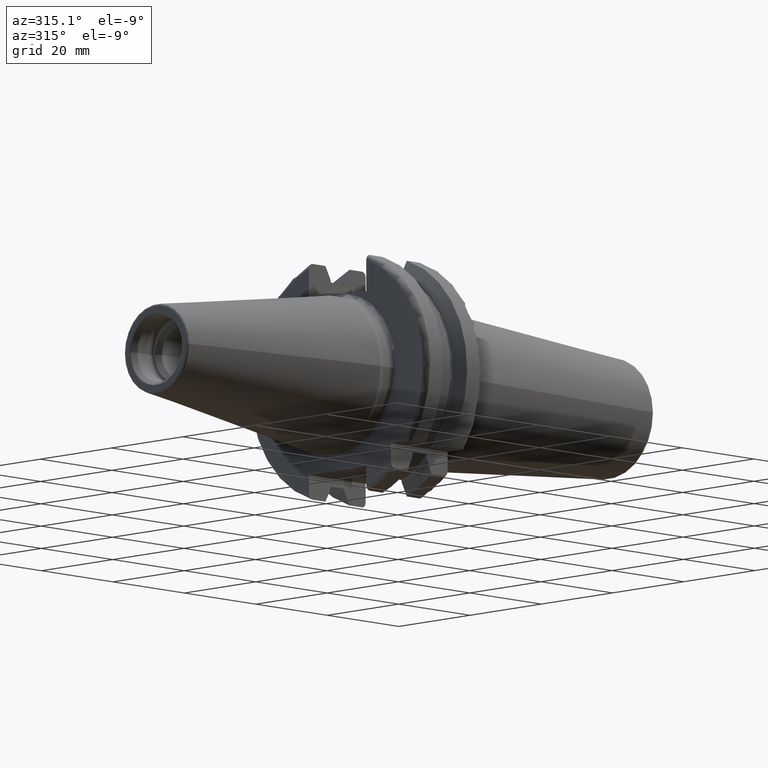
[diagram: clean part render]
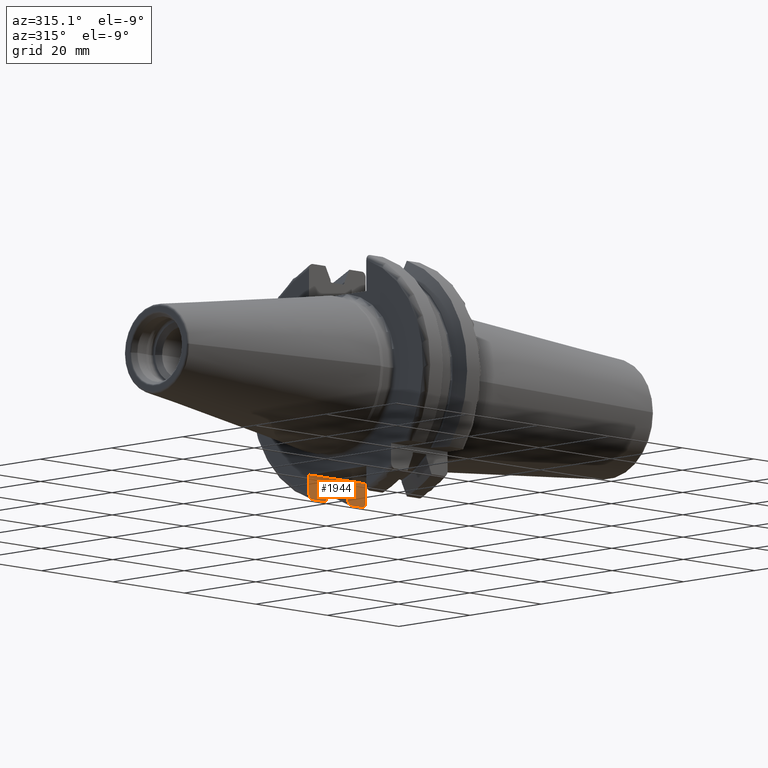
[diagram: same view with one face highlighted and labeled with its STEP entity id]
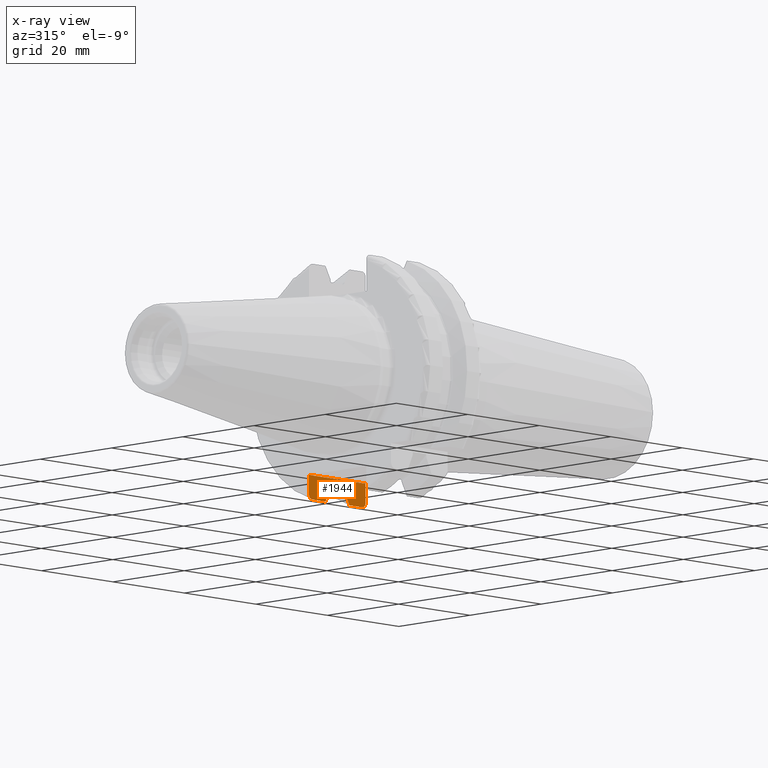
[diagram: x-ray of the same camera — body ghosted, the highlighted face saturated]
A machine part, auxiliary view. The second image highlights one B-rep face of the part: STEP entity #1944.
The next image is the same camera in x-ray: the body ghosted, the highlighted face saturated — about 0% of this face is hidden behind the body in this view.
In plain terms, the highlighted planar face has unit normal (0, 1, 0).
Its self-contained STEP definition (entity closure, byte-faithful):
#144=DIRECTION('',(0.E0,0.E0,1.E0));
#145=VECTOR('',#144,3.799061927434E0);
#146=CARTESIAN_POINT('',(1.905E1,8.05E0,-2.259906192743E1));
#147=LINE('',#146,#145);
#317=DIRECTION('',(0.E0,3.534765641791E-14,1.E0));
#318=VECTOR('',#317,2.010155149636E-1);
#319=CARTESIAN_POINT('',(9.2625E0,8.05E0,-2.097053946232E1));
#320=LINE('',#319,#318);
#379=CARTESIAN_POINT('',(7.803274427933E0,8.05E0,-2.365792890344E1));
#380=CARTESIAN_POINT('',(7.972427442555E0,8.05E0,-2.334845081669E1));
#381=CARTESIAN_POINT('',(8.306073844189E0,8.05E0,-2.273675949894E1));
#382=CARTESIAN_POINT('',(8.792438946834E0,8.05E0,-2.184111363646E1));
#383=CARTESIAN_POINT('',(9.107378251064E0,8.05E0,-2.125833411433E1));
#384=CARTESIAN_POINT('',(9.2625E0,8.05E0,-2.097053946232E1));
#451=CARTESIAN_POINT('',(9.5125E0,8.05E0,-2.050117374689E1));
#452=CARTESIAN_POINT('',(9.479594642679E0,8.05E0,-2.050117374689E1));
#453=CARTESIAN_POINT('',(9.418378467911E0,8.05E0,-2.051405396285E1));
#454=CARTESIAN_POINT('',(9.333632786878E0,8.05E0,-2.057158784050E1));
#455=CARTESIAN_POINT('',(9.276067528209E0,8.05E0,-2.066300861555E1));
#456=CARTESIAN_POINT('',(9.2625E0,8.05E0,-2.073187780160E1));
#457=CARTESIAN_POINT('',(9.2625E0,8.05E0,-2.076952394736E1));
#524=DIRECTION('',(1.E0,0.E0,0.E0));
#525=VECTOR('',#524,3.603274427933E0);
#526=CARTESIAN_POINT('',(4.2E0,8.05E0,-2.365792890344E1));
#527=LINE('',#526,#525);
#542=DIRECTION('',(1.E0,0.E0,0.E0));
#543=VECTOR('',#542,3.503274427933E0);
#544=CARTESIAN_POINT('',(1.454672557207E1,8.05E0,-2.365792890344E1));
#545=LINE('',#544,#543);
#593=CARTESIAN_POINT('',(1.454672557207E1,8.05E0,-2.365792890344E1));
#594=CARTESIAN_POINT('',(1.437757255744E1,8.05E0,-2.334845081669E1));
#595=CARTESIAN_POINT('',(1.404392615581E1,8.05E0,-2.273675949894E1));
#596=CARTESIAN_POINT('',(1.355756105317E1,8.05E0,-2.184111363646E1));
#597=CARTESIAN_POINT('',(1.324262174894E1,8.05E0,-2.125833411433E1));
#598=CARTESIAN_POINT('',(1.30875E1,8.05E0,-2.097053946232E1));
#607=DIRECTION('',(0.E0,1.767382820895E-14,1.E0));
#608=VECTOR('',#607,2.010155149636E-1);
#609=CARTESIAN_POINT('',(1.30875E1,8.05E0,-2.097053946232E1));
#610=LINE('',#609,#608);
#690=CARTESIAN_POINT('',(1.30875E1,8.05E0,-2.076952394736E1));
#691=CARTESIAN_POINT('',(1.30875E1,8.05E0,-2.073184300563E1));
#692=CARTESIAN_POINT('',(1.307392336501E1,8.05E0,-2.066293039418E1));
#693=CARTESIAN_POINT('',(1.301621033138E1,8.05E0,-2.057143537883E1));
#694=CARTESIAN_POINT('',(1.293162343753E1,8.05E0,-2.051407928406E1));
#695=CARTESIAN_POINT('',(1.287040655318E1,8.05E0,-2.050117374689E1));
#696=CARTESIAN_POINT('',(1.28375E1,8.05E0,-2.050117374689E1));
#742=DIRECTION('',(1.E0,0.E0,0.E0));
#743=VECTOR('',#742,3.325E0);
#744=CARTESIAN_POINT('',(9.5125E0,8.05E0,-2.050117374689E1));
#745=LINE('',#744,#743);
#816=CARTESIAN_POINT('',(1.905E1,8.05E0,-2.259906192743E1));
#817=CARTESIAN_POINT('',(1.905E1,8.05E0,-2.267923724554E1));
#818=CARTESIAN_POINT('',(1.903329151926E1,8.05E0,-2.283481698751E1));
#819=CARTESIAN_POINT('',(1.896067182008E1,8.05E0,-2.305788257794E1));
#820=CARTESIAN_POINT('',(1.884329828325E1,8.05E0,-2.325863729503E1));
#821=CARTESIAN_POINT('',(1.868593674730E1,8.05E0,-2.342822773248E1));
#822=CARTESIAN_POINT('',(1.849441961593E1,8.05E0,-2.355812532143E1));
#823=CARTESIAN_POINT('',(1.827794831249E1,8.05E0,-2.363940796394E1));
#824=CARTESIAN_POINT('',(1.812758044193E1,8.05E0,-2.365792890344E1));
#825=CARTESIAN_POINT('',(1.805E1,8.05E0,-2.365792890344E1));
#905=CARTESIAN_POINT('',(4.2E0,8.05E0,-2.365792890344E1));
#906=CARTESIAN_POINT('',(4.122127712833E0,8.05E0,-2.365792890344E1));
#907=CARTESIAN_POINT('',(3.971182683137E0,8.05E0,-2.363930307718E1));
#908=CARTESIAN_POINT('',(3.753345142709E0,8.05E0,-2.355708587001E1));
#909=CARTESIAN_POINT('',(3.561524648547E0,8.05E0,-2.342607287402E1));
#910=CARTESIAN_POINT('',(3.404779764413E0,8.05E0,-2.325597290451E1));
#911=CARTESIAN_POINT('',(3.288453220846E0,8.05E0,-2.305568112926E1));
#912=CARTESIAN_POINT('',(3.216617784360E0,8.05E0,-2.283396543716E1));
#913=CARTESIAN_POINT('',(3.2E0,8.05E0,-2.267895714932E1));
#914=CARTESIAN_POINT('',(3.2E0,8.05E0,-2.259906192743E1));
#932=DIRECTION('',(0.E0,0.E0,1.E0));
#933=VECTOR('',#932,3.799061927434E0);
#934=CARTESIAN_POINT('',(3.2E0,8.05E0,-2.259906192743E1));
#935=LINE('',#934,#933);
#973=DIRECTION('',(-1.E0,0.E0,0.E0));
#974=VECTOR('',#973,1.585E1);
#975=CARTESIAN_POINT('',(1.905E1,8.05E0,-1.88E1));
#976=LINE('',#975,#974);
#1257=CARTESIAN_POINT('',(9.2625E0,8.05E0,-2.097053946232E1));
#1258=CARTESIAN_POINT('',(9.2625E0,8.05E0,-2.076952394736E1));
#1259=VERTEX_POINT('',#1257);
#1260=VERTEX_POINT('',#1258);
#1289=CARTESIAN_POINT('',(1.30875E1,8.05E0,-2.097053946232E1));
#1290=CARTESIAN_POINT('',(1.30875E1,8.05E0,-2.076952394736E1));
#1291=VERTEX_POINT('',#1289);
#1292=VERTEX_POINT('',#1290);
#1313=VERTEX_POINT('',#451);
#1317=CARTESIAN_POINT('',(1.28375E1,8.05E0,-2.050117374689E1));
#1318=VERTEX_POINT('',#1317);
#1325=VERTEX_POINT('',#593);
#1329=VERTEX_POINT('',#379);
#1333=CARTESIAN_POINT('',(1.905E1,8.05E0,-2.259906192743E1));
#1334=CARTESIAN_POINT('',(1.905E1,8.05E0,-1.88E1));
#1335=VERTEX_POINT('',#1333);
#1336=VERTEX_POINT('',#1334);
#1363=CARTESIAN_POINT('',(3.2E0,8.05E0,-2.259906192743E1));
#1364=CARTESIAN_POINT('',(3.2E0,8.05E0,-1.88E1));
#1365=VERTEX_POINT('',#1363);
#1366=VERTEX_POINT('',#1364);
#1389=CARTESIAN_POINT('',(4.2E0,8.05E0,-2.365792890344E1));
#1390=VERTEX_POINT('',#1389);
#1391=CARTESIAN_POINT('',(1.805E1,8.05E0,-2.365792890344E1));
#1392=VERTEX_POINT('',#1391);
#1911=CARTESIAN_POINT('',(1.905E1,8.05E0,-2.88E1));
#1912=DIRECTION('',(0.E0,1.E0,0.E0));
#1913=DIRECTION('',(0.E0,0.E0,1.E0));
#1914=AXIS2_PLACEMENT_3D('',#1911,#1912,#1913);
#1915=PLANE('',#1914);
#1916=ORIENTED_EDGE('',*,*,#1869,.F.);
#1918=ORIENTED_EDGE('',*,*,#1917,.F.);
#1920=ORIENTED_EDGE('',*,*,#1919,.F.);
#1922=ORIENTED_EDGE('',*,*,#1921,.T.);
#1924=ORIENTED_EDGE('',*,*,#1923,.T.);
#1926=ORIENTED_EDGE('',*,*,#1925,.F.);
#1927=ORIENTED_EDGE('',*,*,#1637,.F.);
#1929=ORIENTED_EDGE('',*,*,#1928,.T.);
#1931=ORIENTED_EDGE('',*,*,#1930,.F.);
#1933=ORIENTED_EDGE('',*,*,#1932,.T.);
#1935=ORIENTED_EDGE('',*,*,#1934,.T.);
#1937=ORIENTED_EDGE('',*,*,#1936,.T.);
#1939=ORIENTED_EDGE('',*,*,#1938,.F.);
#1941=ORIENTED_EDGE('',*,*,#1940,.T.);
#1942=EDGE_LOOP('',(#1916,#1918,#1920,#1922,#1924,#1926,#1927,#1929,#1931,#1933,
#1935,#1937,#1939,#1941));
#1943=FACE_OUTER_BOUND('',#1942,.F.);
#1944=ADVANCED_FACE('',(#1943),#1915,.F.);
#385=B_SPLINE_CURVE_WITH_KNOTS('',3,(#379,#380,#381,#382,#383,#384),
.UNSPECIFIED.,.F.,.F.,(4,1,1,4),(0.E0,3.333333333333E-1,6.666666666667E-1,1.E0),
.UNSPECIFIED.);
#458=B_SPLINE_CURVE_WITH_KNOTS('',3,(#451,#452,#453,#454,#455,#456,#457),
.UNSPECIFIED.,.F.,.F.,(4,1,1,1,4),(0.E0,2.5E-1,5.E-1,7.5E-1,1.E0),
.UNSPECIFIED.);
#599=B_SPLINE_CURVE_WITH_KNOTS('',3,(#593,#594,#595,#596,#597,#598),
.UNSPECIFIED.,.F.,.F.,(4,1,1,4),(0.E0,3.333333333333E-1,6.666666666667E-1,1.E0),
.UNSPECIFIED.);
#697=B_SPLINE_CURVE_WITH_KNOTS('',3,(#690,#691,#692,#693,#694,#695,#696),
.UNSPECIFIED.,.F.,.F.,(4,1,1,1,4),(0.E0,2.5E-1,5.E-1,7.5E-1,1.E0),
.UNSPECIFIED.);
#826=B_SPLINE_CURVE_WITH_KNOTS('',3,(#816,#817,#818,#819,#820,#821,#822,#823,
#824,#825),.UNSPECIFIED.,.F.,.F.,(4,1,1,1,1,1,1,4),(0.E0,1.428571428571E-1,
2.857142857143E-1,4.285714285714E-1,5.714285714286E-1,7.142857142857E-1,
8.571428571429E-1,1.E0),.UNSPECIFIED.);
#915=B_SPLINE_CURVE_WITH_KNOTS('',3,(#905,#906,#907,#908,#909,#910,#911,#912,
#913,#914),.UNSPECIFIED.,.F.,.F.,(4,1,1,1,1,1,1,4),(0.E0,1.428571428571E-1,
2.857142857143E-1,4.285714285714E-1,5.714285714286E-1,7.142857142857E-1,
8.571428571429E-1,1.E0),.UNSPECIFIED.);
#1637=EDGE_CURVE('',#1335,#1336,#147,.T.);
#1869=EDGE_CURVE('',#1259,#1260,#320,.T.);
#1917=EDGE_CURVE('',#1329,#1259,#385,.T.);
#1919=EDGE_CURVE('',#1390,#1329,#527,.T.);
#1921=EDGE_CURVE('',#1390,#1365,#915,.T.);
#1923=EDGE_CURVE('',#1365,#1366,#935,.T.);
#1925=EDGE_CURVE('',#1336,#1366,#976,.T.);
#1928=EDGE_CURVE('',#1335,#1392,#826,.T.);
#1930=EDGE_CURVE('',#1325,#1392,#545,.T.);
#1932=EDGE_CURVE('',#1325,#1291,#599,.T.);
#1934=EDGE_CURVE('',#1291,#1292,#610,.T.);
#1936=EDGE_CURVE('',#1292,#1318,#697,.T.);
#1938=EDGE_CURVE('',#1313,#1318,#745,.T.);
#1940=EDGE_CURVE('',#1313,#1260,#458,.T.);